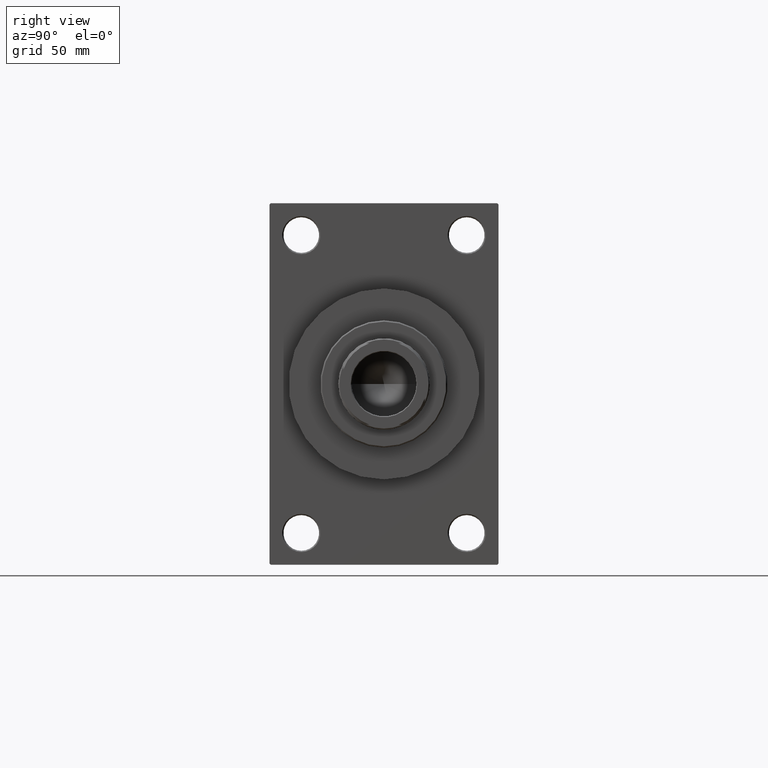
[diagram: clean part render]
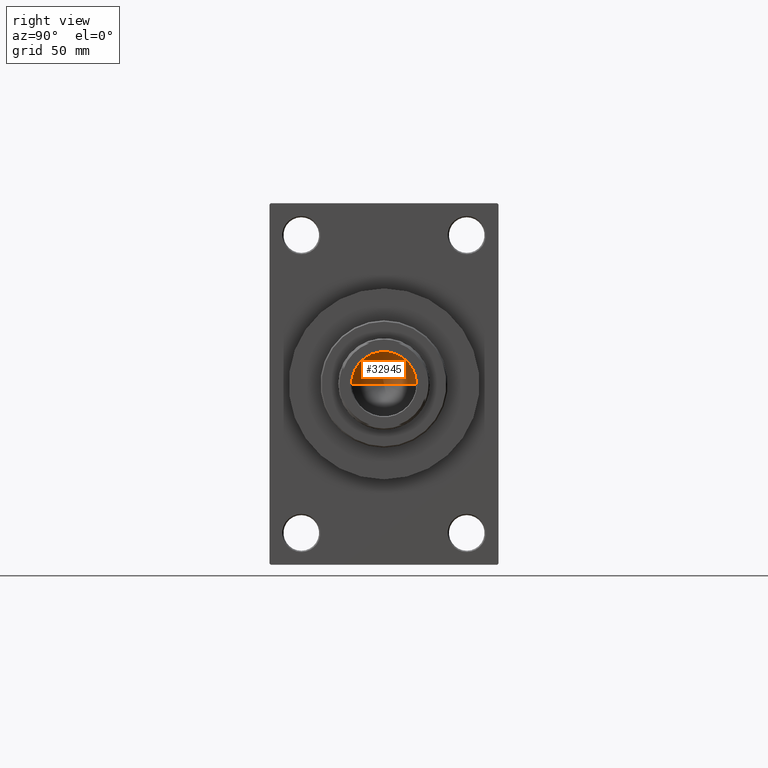
[diagram: same view with one face highlighted and labeled with its STEP entity id]
A machine part, right view. The second image highlights one B-rep face of the part: STEP entity #32945.
In plain terms, the highlighted conical surface has half-angle 59 deg.
Its self-contained STEP definition (entity closure, byte-faithful):
#672 = DIRECTION ( 'NONE',  ( 1.000000000000000000, 0.000000000000000000, 0.000000000000000000 ) ) ;
#2420 = LINE ( 'NONE', #46565, #35272 ) ;
#3075 = CARTESIAN_POINT ( 'NONE',  ( 12.74999999999998934, 0.000000000000000000, 135.0000000000000000 ) ) ;
#3175 = CARTESIAN_POINT ( 'NONE',  ( 0.000000000000000000, 0.000000000000000000, 135.0000000000000000 ) ) ;
#4238 = CARTESIAN_POINT ( 'NONE',  ( -12.74999999999998934, 1.561424668912873928E-15, 135.0000000000000000 ) ) ;
#5440 = AXIS2_PLACEMENT_3D ( 'NONE', #3175, #31167, #38579 ) ;
#5522 = VERTEX_POINT ( 'NONE', #43500 ) ;
#6230 = CIRCLE ( 'NONE', #5440, 12.74999999999998934 ) ;
#10231 = ORIENTED_EDGE ( 'NONE', *, *, #15864, .T. ) ;
#13876 = DIRECTION ( 'NONE',  ( -0.8571673007021125557, 1.049727191138618942E-16, 0.5150380749100537114 ) ) ;
#15013 = CARTESIAN_POINT ( 'NONE',  ( 0.000000000000000000, 0.000000000000000000, 135.0000000000000000 ) ) ;
#15864 = EDGE_CURVE ( 'NONE', #24892, #5522, #6230, .T. ) ;
#17639 = DIRECTION ( 'NONE',  ( 0.8571673007021125557, 0.000000000000000000, 0.5150380749100537114 ) ) ;
#19069 = VECTOR ( 'NONE', #17639, 1000.000000000000000 ) ;
#22198 = EDGE_CURVE ( 'NONE', #31266, #24892, #2420, .T. ) ;
#24892 = VERTEX_POINT ( 'NONE', #4238 ) ;
#25627 = ORIENTED_EDGE ( 'NONE', *, *, #38710, .F. ) ;
#26505 = ORIENTED_EDGE ( 'NONE', *, *, #22198, .T. ) ;
#30264 = FACE_OUTER_BOUND ( 'NONE', #45849, .T. ) ;
#31167 = DIRECTION ( 'NONE',  ( -0.000000000000000000, -0.000000000000000000, 1.000000000000000000 ) ) ;
#31266 = VERTEX_POINT ( 'NONE', #44643 ) ;
#32945 = ADVANCED_FACE ( 'NONE', ( #30264 ), #41025, .F. ) ;
#35272 = VECTOR ( 'NONE', #13876, 1000.000000000000000 ) ;
#35779 = LINE ( 'NONE', #3075, #19069 ) ;
#36459 = AXIS2_PLACEMENT_3D ( 'NONE', #15013, #36745, #672 ) ;
#36745 = DIRECTION ( 'NONE',  ( -0.000000000000000000, -0.000000000000000000, 1.000000000000000000 ) ) ;
#38579 = DIRECTION ( 'NONE',  ( 1.000000000000000000, 0.000000000000000000, 0.000000000000000000 ) ) ;
#38710 = EDGE_CURVE ( 'NONE', #31266, #5522, #35779, .T. ) ;
#41025 = CONICAL_SURFACE ( 'NONE', #36459, 12.74999999999998934, 1.029744258676654978 ) ;
#43500 = CARTESIAN_POINT ( 'NONE',  ( 12.74999999999998934, 0.000000000000000000, 135.0000000000000000 ) ) ;
#44643 = CARTESIAN_POINT ( 'NONE',  ( -1.410643066818227497E-14, 0.000000000000000000, 127.3390271073986355 ) ) ;
#45849 = EDGE_LOOP ( 'NONE', ( #25627, #26505, #10231 ) ) ;
#46565 = CARTESIAN_POINT ( 'NONE',  ( -12.74999999999998934, 1.561424668912873928E-15, 135.0000000000000000 ) ) ;